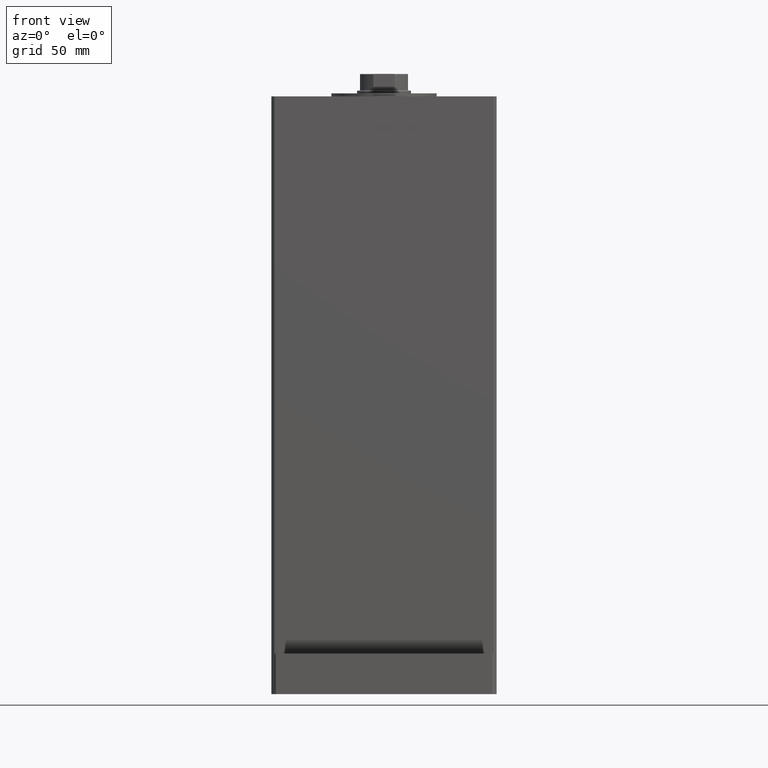
[diagram: clean part render]
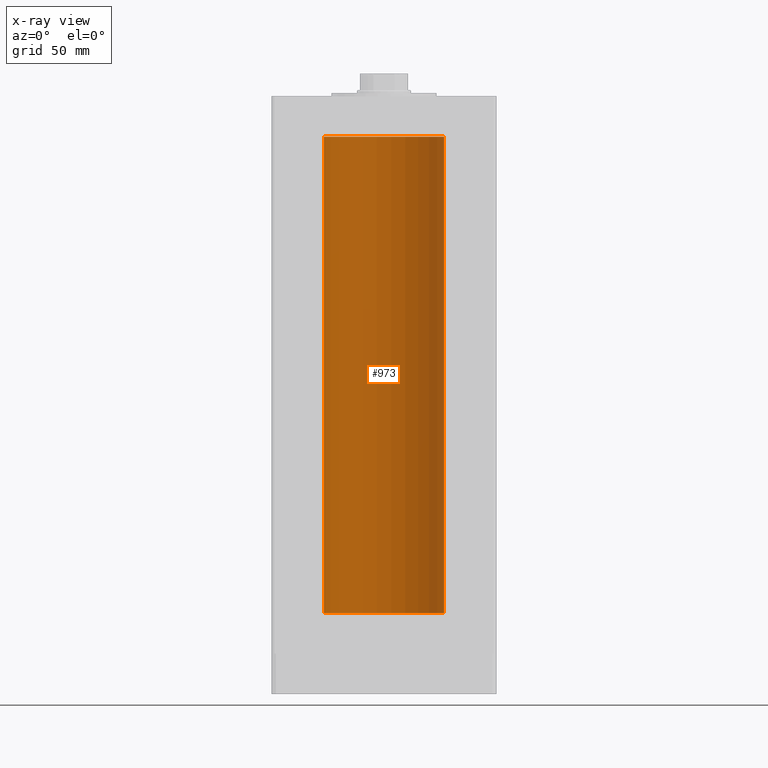
[diagram: x-ray — body ghosted, one internal face saturated and labeled with its STEP entity id]
A machine part, front view, then the same camera in x-ray: the body is ghosted and one INTERNAL B-rep face — a face not visible from any outside direction — is saturated and labeled: STEP entity #973.
In plain terms, the highlighted cylindrical surface (partial cylindrical patch) has radius 40 mm, axis along (-0, -0, -1).
Its self-contained STEP definition (entity closure, byte-faithful):
#973 = ADVANCED_FACE ( 'NONE', ( #50322 ), #13914, .F. ) ;
#3671 = VECTOR ( 'NONE', #11005, 1000.000000000000000 ) ;
#4313 = ORIENTED_EDGE ( 'NONE', *, *, #49487, .F. ) ;
#4934 = DIRECTION ( 'NONE',  ( -1.000000000000000000, 0.000000000000000000, 0.000000000000000000 ) ) ;
#5361 = CARTESIAN_POINT ( 'NONE',  ( 40.00000000000000000, 4.898587196589413026E-15, 317.0000000000000000 ) ) ;
#6290 = DIRECTION ( 'NONE',  ( -0.000000000000000000, 0.000000000000000000, 1.000000000000000000 ) ) ;
#6578 = CARTESIAN_POINT ( 'NONE',  ( 40.00000000000000000, 4.898587196589413026E-15, 0.000000000000000000 ) ) ;
#6839 = DIRECTION ( 'NONE',  ( 1.000000000000000000, 0.000000000000000000, 0.000000000000000000 ) ) ;
#8762 = VECTOR ( 'NONE', #14368, 1000.000000000000000 ) ;
#11005 = DIRECTION ( 'NONE',  ( -0.000000000000000000, -0.000000000000000000, -1.000000000000000000 ) ) ;
#12247 = VERTEX_POINT ( 'NONE', #6578 ) ;
#12313 = ORIENTED_EDGE ( 'NONE', *, *, #51320, .F. ) ;
#13839 = CARTESIAN_POINT ( 'NONE',  ( -40.00000000000000000, 0.000000000000000000, 317.0000000000000000 ) ) ;
#13914 = CYLINDRICAL_SURFACE ( 'NONE', #51570, 40.00000000000000000 ) ;
#14368 = DIRECTION ( 'NONE',  ( -0.000000000000000000, -0.000000000000000000, -1.000000000000000000 ) ) ;
#17908 = ORIENTED_EDGE ( 'NONE', *, *, #46861, .T. ) ;
#18341 = CARTESIAN_POINT ( 'NONE',  ( -40.00000000000000000, 0.000000000000000000, 317.0000000000000000 ) ) ;
#18415 = EDGE_CURVE ( 'NONE', #37515, #36657, #41578, .T. ) ;
#22078 = CARTESIAN_POINT ( 'NONE',  ( 0.000000000000000000, 0.000000000000000000, 317.0000000000000000 ) ) ;
#22463 = DIRECTION ( 'NONE',  ( 1.000000000000000000, 0.000000000000000000, 0.000000000000000000 ) ) ;
#22538 = LINE ( 'NONE', #13839, #8762 ) ;
#22736 = CIRCLE ( 'NONE', #28829, 40.00000000000000000 ) ;
#25311 = ORIENTED_EDGE ( 'NONE', *, *, #18415, .T. ) ;
#27314 = LINE ( 'NONE', #52812, #3671 ) ;
#28829 = AXIS2_PLACEMENT_3D ( 'NONE', #30347, #42561, #22463 ) ;
#30347 = CARTESIAN_POINT ( 'NONE',  ( 0.000000000000000000, 0.000000000000000000, 0.000000000000000000 ) ) ;
#30495 = DIRECTION ( 'NONE',  ( -0.000000000000000000, -0.000000000000000000, -1.000000000000000000 ) ) ;
#30771 = CARTESIAN_POINT ( 'NONE',  ( 0.000000000000000000, 0.000000000000000000, 317.0000000000000000 ) ) ;
#31186 = AXIS2_PLACEMENT_3D ( 'NONE', #30771, #6290, #6839 ) ;
#36657 = VERTEX_POINT ( 'NONE', #18341 ) ;
#37515 = VERTEX_POINT ( 'NONE', #5361 ) ;
#41320 = EDGE_LOOP ( 'NONE', ( #12313, #25311, #17908, #4313 ) ) ;
#41578 = CIRCLE ( 'NONE', #31186, 40.00000000000000000 ) ;
#42561 = DIRECTION ( 'NONE',  ( -0.000000000000000000, 0.000000000000000000, 1.000000000000000000 ) ) ;
#43287 = CARTESIAN_POINT ( 'NONE',  ( -40.00000000000000000, 0.000000000000000000, 0.000000000000000000 ) ) ;
#45571 = VERTEX_POINT ( 'NONE', #43287 ) ;
#46861 = EDGE_CURVE ( 'NONE', #36657, #45571, #22538, .T. ) ;
#49487 = EDGE_CURVE ( 'NONE', #12247, #45571, #22736, .T. ) ;
#50322 = FACE_OUTER_BOUND ( 'NONE', #41320, .T. ) ;
#51320 = EDGE_CURVE ( 'NONE', #37515, #12247, #27314, .T. ) ;
#51570 = AXIS2_PLACEMENT_3D ( 'NONE', #22078, #30495, #4934 ) ;
#52812 = CARTESIAN_POINT ( 'NONE',  ( 40.00000000000000000, 4.898587196589413026E-15, 317.0000000000000000 ) ) ;